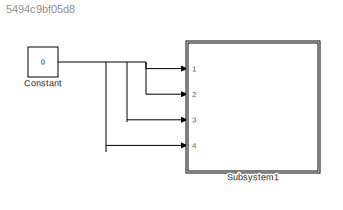
MODEL slx_5494c9bf05d8
KIND model
CONFIG AbsTol = auto
CONFIG FixedStep = auto
CONFIG MaxStep = auto
CONFIG MinStep = auto
CONFIG RelTol = 1e-3
CONFIG SampleTimeConstraint = Unconstrained
CONFIG Solver = ode45
CONFIG SolverMode = Auto
CONFIG SolverName = ode45
CONFIG StartTime = 0.0
CONFIG StopTime = 10.0
BLOCK [Constant] Constant
  Value = 0
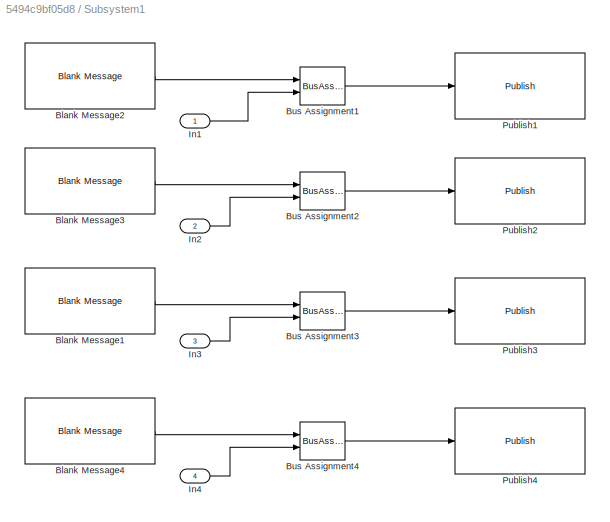
BLOCK [SubSystem] Subsystem1
  Ports = [4]
  RequestExecContextInheritance = off
BLOCK [Reference] Subsystem1/Blank Message1  REF=robotlib/Blank Message
  Ports = [0, 1]
  SampleTime = inf
  SourceBlock = robotlib/Blank Message
  SourceLibraryInfo = This block requires Robotics System Toolbox
  SourceType = ROS Blank Message
  messageType = std_msgs/Float64
BLOCK [Reference] Subsystem1/Blank Message2  REF=robotlib/Blank Message
  Ports = [0, 1]
  SampleTime = inf
  SourceBlock = robotlib/Blank Message
  SourceLibraryInfo = This block requires Robotics System Toolbox
  SourceType = ROS Blank Message
  messageType = std_msgs/Float64
BLOCK [Reference] Subsystem1/Blank Message3  REF=robotlib/Blank Message
  Ports = [0, 1]
  SampleTime = inf
  SourceBlock = robotlib/Blank Message
  SourceLibraryInfo = This block requires Robotics System Toolbox
  SourceType = ROS Blank Message
  messageType = std_msgs/Float64
BLOCK [Reference] Subsystem1/Blank Message4  REF=robotlib/Blank Message
  Ports = [0, 1]
  SampleTime = inf
  SourceBlock = robotlib/Blank Message
  SourceLibraryInfo = This block requires Robotics System Toolbox
  SourceType = ROS Blank Message
  messageType = std_msgs/Float64
BLOCK [BusAssignment] Subsystem1/Bus Assignment1
  AssignedSignals = Data
  Ports = [2, 1]
BLOCK [BusAssignment] Subsystem1/Bus Assignment2
  AssignedSignals = Data
  Ports = [2, 1]
BLOCK [BusAssignment] Subsystem1/Bus Assignment3
  AssignedSignals = Data
  Ports = [2, 1]
BLOCK [BusAssignment] Subsystem1/Bus Assignment4
  AssignedSignals = Data
  Ports = [2, 1]
BLOCK [Inport] Subsystem1/In1
  IconDisplay = Port number
BLOCK [Inport] Subsystem1/In2
  IconDisplay = Port number
  Port = 2
BLOCK [Inport] Subsystem1/In3
  IconDisplay = Port number
  Port = 3
BLOCK [Inport] Subsystem1/In4
  IconDisplay = Port number
  Port = 4
BLOCK [Reference] Subsystem1/Publish1  REF=robotlib/Publish
  Ports = [1]
  SourceBlock = robotlib/Publish
  SourceLibraryInfo = This block requires Robotics System Toolbox
  SourceType = ROS Publish
  messageQueueLength = 1
  messageType = std_msgs/Float64
  topic = /puma560/joint_2_position_controller/command
  topicSource = Specify your own
BLOCK [Reference] Subsystem1/Publish2  REF=robotlib/Publish
  Ports = [1]
  SourceBlock = robotlib/Publish
  SourceLibraryInfo = This block requires Robotics System Toolbox
  SourceType = ROS Publish
  messageQueueLength = 1
  messageType = std_msgs/Float64
  topic = /puma560/joint_3_position_controller/command
  topicSource = Specify your own
BLOCK [Reference] Subsystem1/Publish3  REF=robotlib/Publish
  Ports = [1]
  SourceBlock = robotlib/Publish
  SourceLibraryInfo = This block requires Robotics System Toolbox
  SourceType = ROS Publish
  messageQueueLength = 1
  messageType = std_msgs/Float64
  topic = /puma560/joint_4_position_controller/command
  topicSource = Specify your own
BLOCK [Reference] Subsystem1/Publish4  REF=robotlib/Publish
  Ports = [1]
  SourceBlock = robotlib/Publish
  SourceLibraryInfo = This block requires Robotics System Toolbox
  SourceType = ROS Publish
  messageQueueLength = 1
  messageType = std_msgs/Float64
  topic = /puma560/joint_5_position_controller/command
  topicSource = Specify your own
NET Constant:1 -> Subsystem1:1, Subsystem1:2, Subsystem1:3, Subsystem1:4
LINE Subsystem1/Blank Message1:1 -> Subsystem1/Bus Assignment3:1
LINE Subsystem1/Blank Message2:1 -> Subsystem1/Bus Assignment1:1
LINE Subsystem1/Blank Message3:1 -> Subsystem1/Bus Assignment2:1
LINE Subsystem1/Blank Message4:1 -> Subsystem1/Bus Assignment4:1
LINE Subsystem1/Bus Assignment1:1 -> Subsystem1/Publish1:1
LINE Subsystem1/Bus Assignment2:1 -> Subsystem1/Publish2:1
LINE Subsystem1/Bus Assignment3:1 -> Subsystem1/Publish3:1
LINE Subsystem1/Bus Assignment4:1 -> Subsystem1/Publish4:1
LINE Subsystem1/In1:1 -> Subsystem1/Bus Assignment1:2
LINE Subsystem1/In2:1 -> Subsystem1/Bus Assignment2:2
LINE Subsystem1/In3:1 -> Subsystem1/Bus Assignment3:2
LINE Subsystem1/In4:1 -> Subsystem1/Bus Assignment4:2
note: NET lines group one-source signal fan-out (src -> all destinations, sorted); 1:1 wires keep LINE
